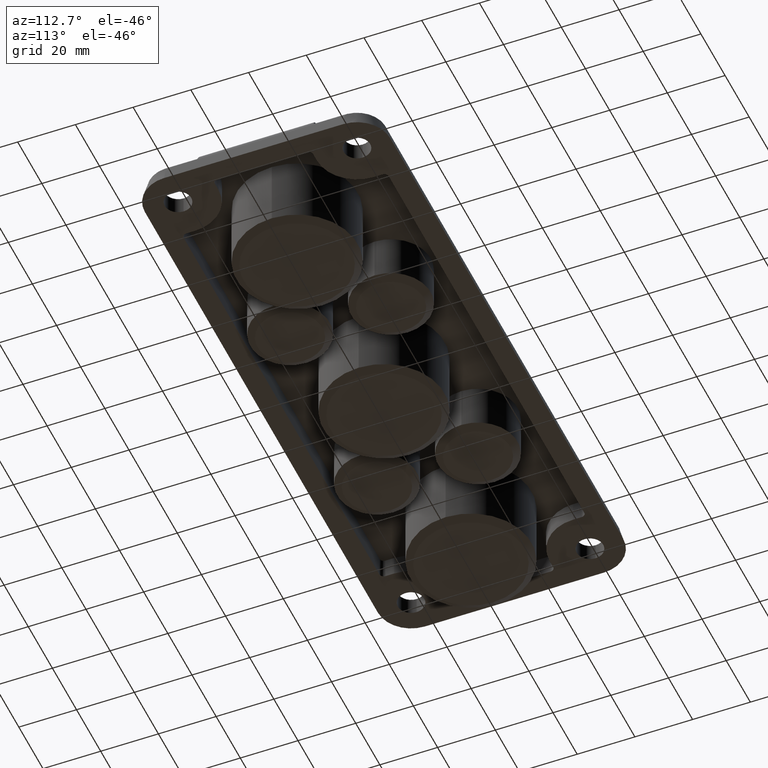
[diagram: clean part render]
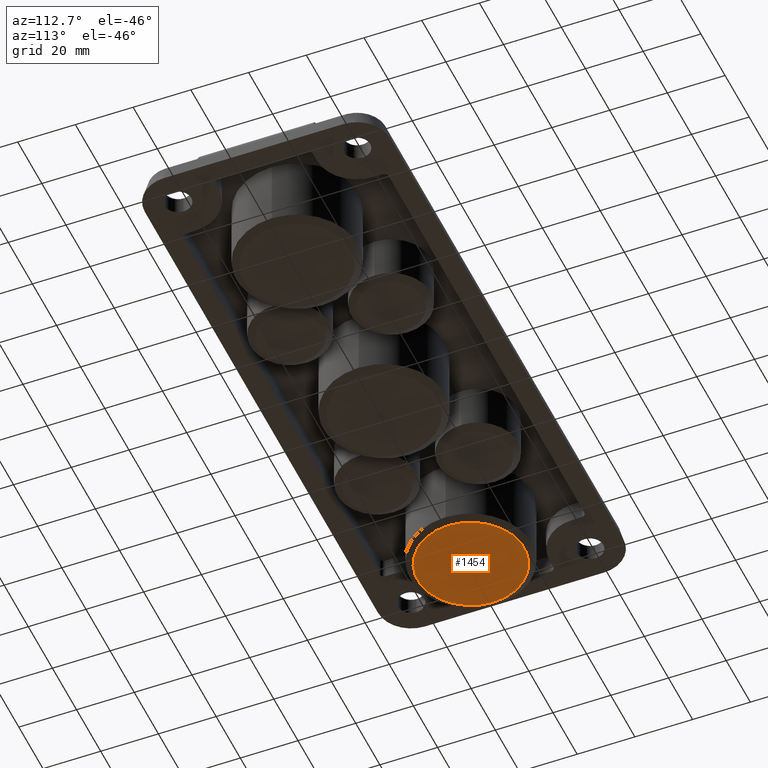
[diagram: same view with one face highlighted and labeled with its STEP entity id]
A machine part, auxiliary view. The second image highlights one B-rep face of the part: STEP entity #1454.
In plain terms, the highlighted planar face has unit normal (0, 0, 1).
Its self-contained STEP definition (entity closure, byte-faithful):
#22 = CARTESIAN_POINT ( 'NONE',  ( -72.00000000000000000, -8.817165747521116300E-015, -18.00000000000000400 ) ) ;
#116 = EDGE_LOOP ( 'NONE', ( #2960, #3558 ) ) ;
#123 = CARTESIAN_POINT ( 'NONE',  ( -72.00000000000000000, -8.817165747521116300E-015, -18.00000000000000400 ) ) ;
#246 = PLANE ( 'NONE',  #2507 ) ;
#395 = DIRECTION ( 'NONE',  ( -0.0000000000000000000, -0.0000000000000000000, -1.000000000000000000 ) ) ;
#397 = CIRCLE ( 'NONE', #1415, 18.49999999999996100 ) ;
#529 = DIRECTION ( 'NONE',  ( 1.000000000000000000, 0.0000000000000000000, -0.0000000000000000000 ) ) ;
#595 = CARTESIAN_POINT ( 'NONE',  ( -53.50000000000003600, -8.817165747521116300E-015, -18.00000000000000400 ) ) ;
#818 = CARTESIAN_POINT ( 'NONE',  ( -72.00000000000000000, -8.817165747521116300E-015, -18.00000000000000400 ) ) ;
#1331 = AXIS2_PLACEMENT_3D ( 'NONE', #123, #395, #3168 ) ;
#1375 = VERTEX_POINT ( 'NONE', #3035 ) ;
#1415 = AXIS2_PLACEMENT_3D ( 'NONE', #22, #2239, #1667 ) ;
#1454 = ADVANCED_FACE ( 'NONE', ( #2559 ), #246, .F. ) ;
#1667 = DIRECTION ( 'NONE',  ( 1.000000000000000000, 0.0000000000000000000, 0.0000000000000000000 ) ) ;
#1757 = VERTEX_POINT ( 'NONE', #595 ) ;
#2239 = DIRECTION ( 'NONE',  ( -0.0000000000000000000, -0.0000000000000000000, -1.000000000000000000 ) ) ;
#2486 = DIRECTION ( 'NONE',  ( 0.0000000000000000000, 0.0000000000000000000, 1.000000000000000000 ) ) ;
#2507 = AXIS2_PLACEMENT_3D ( 'NONE', #818, #2486, #529 ) ;
#2559 = FACE_OUTER_BOUND ( 'NONE', #116, .T. ) ;
#2733 = EDGE_CURVE ( 'NONE', #1375, #1757, #397, .T. ) ;
#2960 = ORIENTED_EDGE ( 'NONE', *, *, #3039, .T. ) ;
#3035 = CARTESIAN_POINT ( 'NONE',  ( -90.49999999999995700, -6.398488319205095500E-015, -18.00000000000000400 ) ) ;
#3039 = EDGE_CURVE ( 'NONE', #1757, #1375, #3265, .T. ) ;
#3168 = DIRECTION ( 'NONE',  ( 1.000000000000000000, 0.0000000000000000000, 0.0000000000000000000 ) ) ;
#3265 = CIRCLE ( 'NONE', #1331, 18.49999999999996100 ) ;
#3558 = ORIENTED_EDGE ( 'NONE', *, *, #2733, .T. ) ;